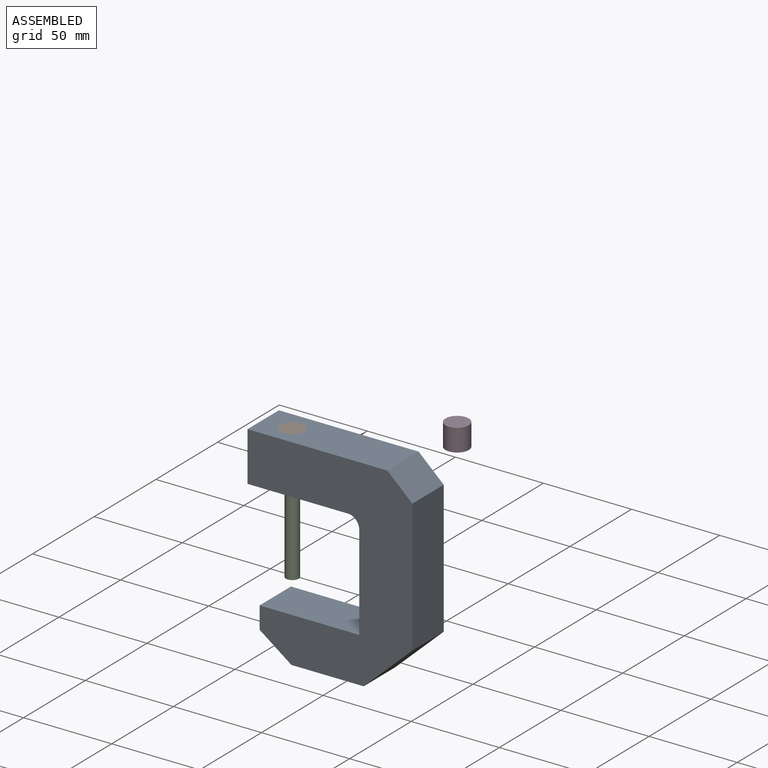
[diagram: assembled view]
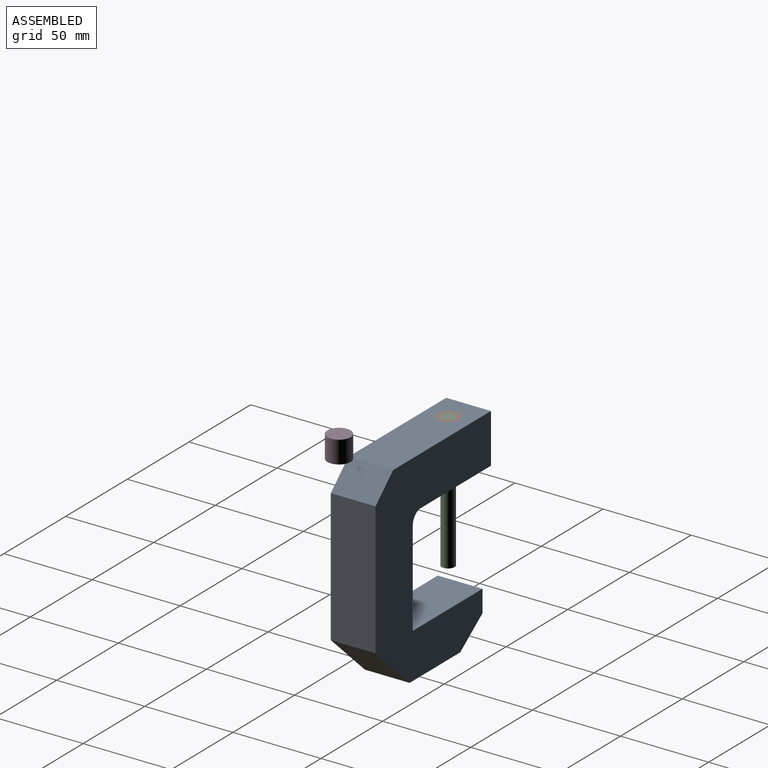
[diagram: assembled view, second angle]
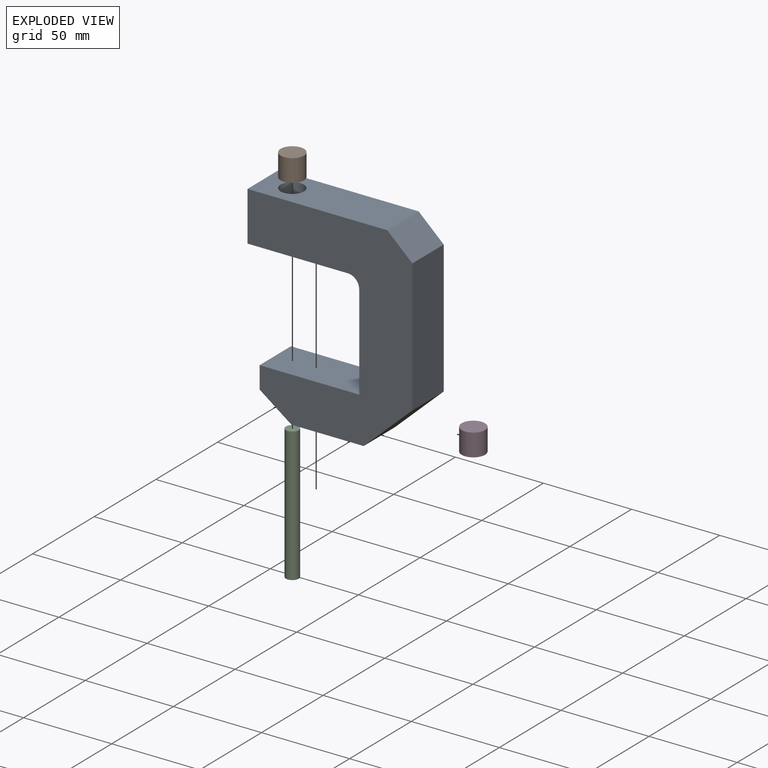
[diagram: exploded view]
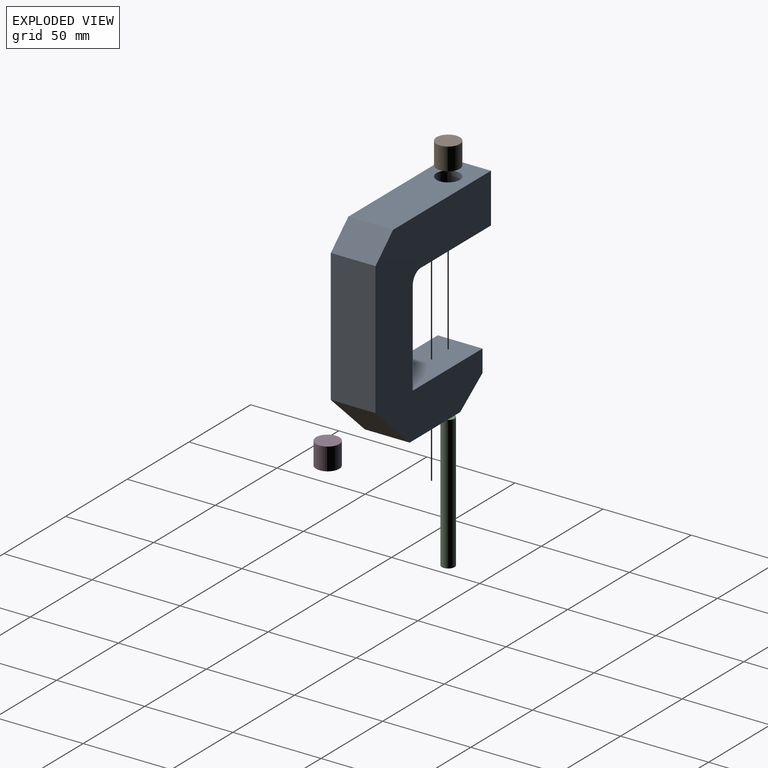
[diagram: exploded view, second angle]
ASSEMBLY  parts=3 mates=2
PART A: 15 faces, bbox 93.6x25.4x114.3 mm
  f0: plane 56.55x25.4mm, normal (0,0,1), area 1436.3mm2, adj f1,f11,f12,f13
  f1: plane 25.4x12.51mm, normal (-1,0,0), area 317.7mm2, adj f0,f2,f12,f13
  f2: plane 25.4x18.07mm, normal (-0.59,0,-0.81), area 568.3mm2, adj f1,f3,f12,f13
  f3: plane 41x25.4mm, normal (0,0,-1), area 1041.3mm2, adj f2,f4,f12,f13
  f4: plane 27.66x25.71mm, normal (0.68,0,-0.73), area 959.1mm2, adj f3,f5,f12,f13
  f5: plane 75.4x25.4mm, normal (1,0,0), area 1915mm2, adj f4,f6,f12,f13
  f6: plane 25.4x14.21mm, normal (0.68,0,0.73), area 492.6mm2, adj f5,f7,f12,f13
  f7: plane 79.35x25.4mm, normal (0,0,1), area 1878.1mm2, adj f6,f8,f12,f13,f14
  f8: plane 28.07x25.4mm, normal (-1,0,0), area 713mm2, adj f7,f9,f12,f13
  f9: plane 57.39x25.4mm, normal (0,0,-1), area 1320.2mm2, adj f8,f10,f12,f13,f14
  f10: cylinder r=6.56mm len=25.4mm, axis (0,1,0), area 247.6mm2, adj f9,f11,f12,f13
  f11: plane 53.98x25.4mm, normal (-1,0,0), area 1371.2mm2, adj f0,f10,f12,f13
  f12: plane 114.3x93.56mm, normal (0,-1,0), area 6122.4mm2, adj f0,f1,f2,f3,f4,f5,f6,f7
  f13: plane 114.3x93.56mm, normal (0,1,0), area 6122.4mm2, adj f0,f1,f2,f3,f4,f5,f6,f7
  f14: cylinder r=6.61mm len=28.07mm, axis (0,0,1), area 1166.4mm2, adj f7,f9
PART B: 3 faces, bbox 13.2x13.2x12.7 mm
  f0: cylinder r=6.61mm len=13.23mm, axis (0,0,-1), area 527.7mm2, adj f1,f2
  f1: plane 13.23x13.23mm, normal (0,0,1), area 137.4mm2, adj f0
  f2: plane 13.23x13.23mm, normal (0,0,-1), area 137.4mm2, adj f0
PART C: 3 faces, bbox 7.2x7.2x76.2 mm
  f0: cylinder r=3.62mm len=76.2mm, axis (0,0,-1), area 1731.2mm2, adj f1,f2
  f1: plane 7.23x7.23mm, normal (0,0,1), area 41.1mm2, adj f0
  f2: plane 7.23x7.23mm, normal (0,0,-1), area 41.1mm2, adj f0
PLACE A t=(-123.44,39.52,-32.25)mm
PLACE B t=(-149.71,-8.67,-44.95)mm
PLACE C t=(-203.69,-14.11,-108.45)mm
MATE revolute C.f0 <-> A.f14  axis (0,0,1) through (-186.26,26.82,-32.25)mm
MATE revolute B.f0 <-> C.f0  axis (0,0,1) through (-186.26,26.82,-32.25)mm
